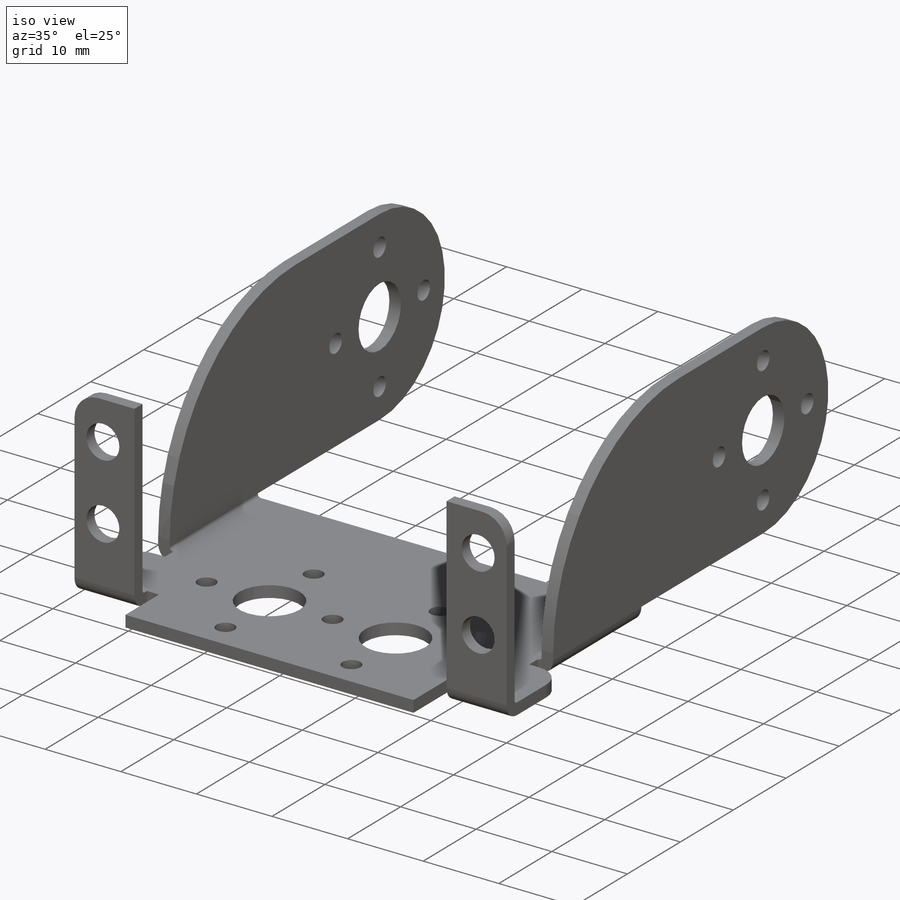
[diagram: iso view]
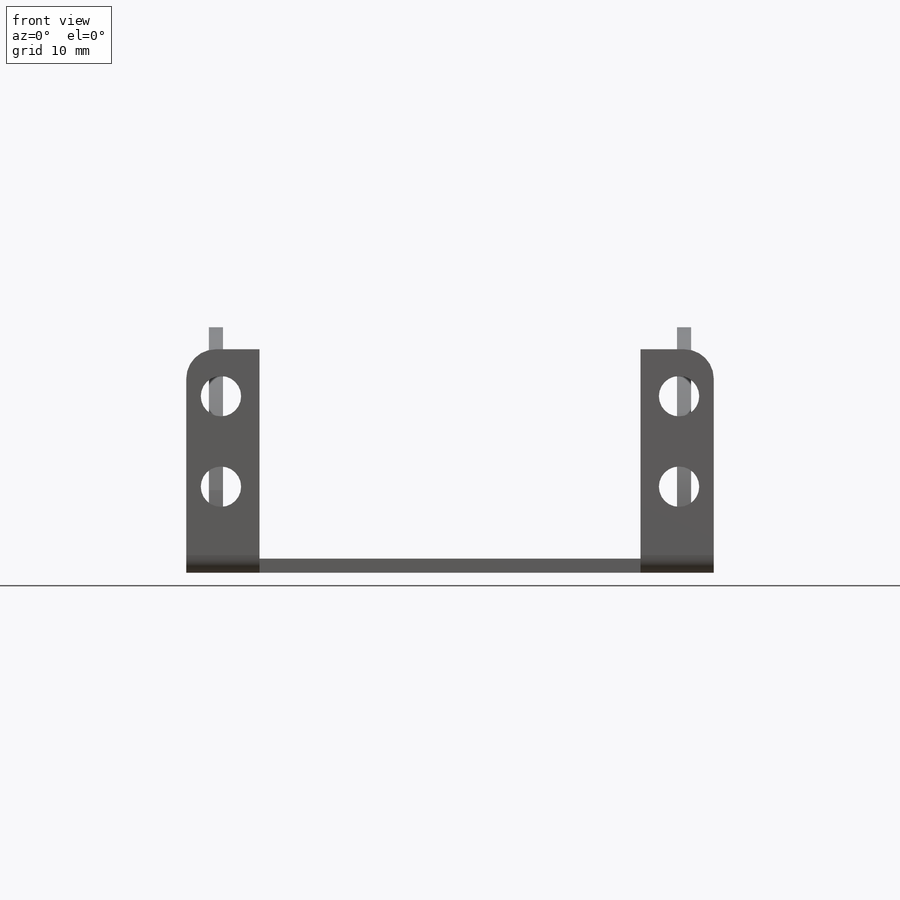
[diagram: front view]
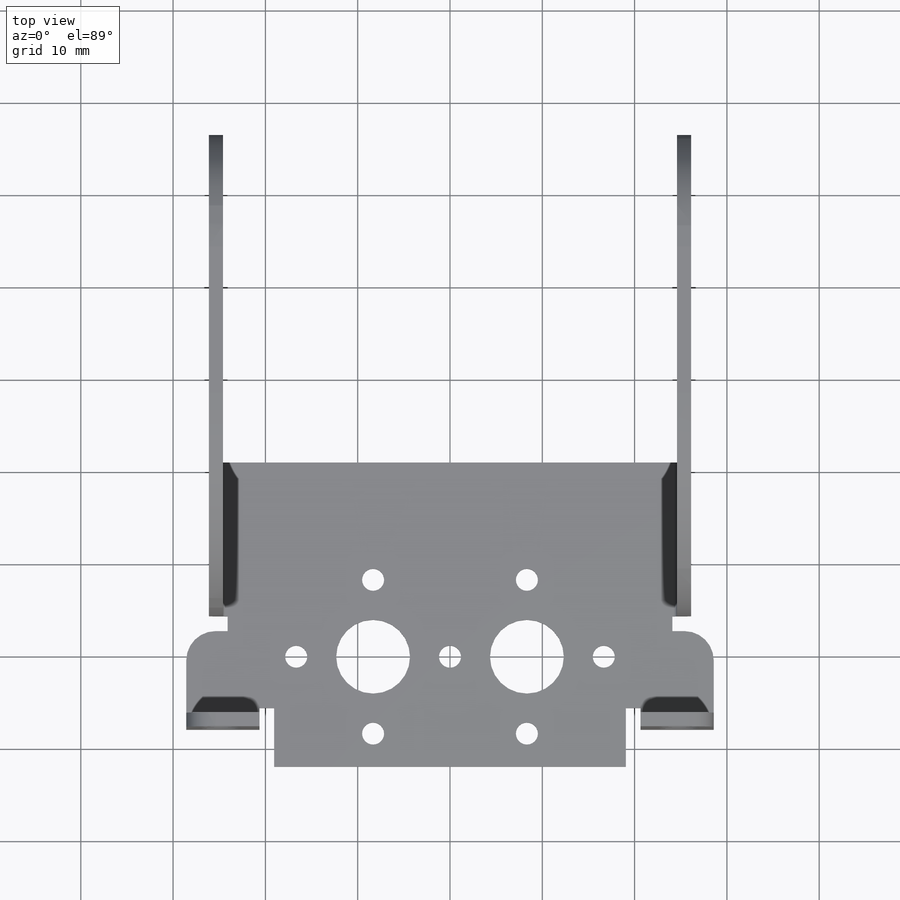
[diagram: top view]
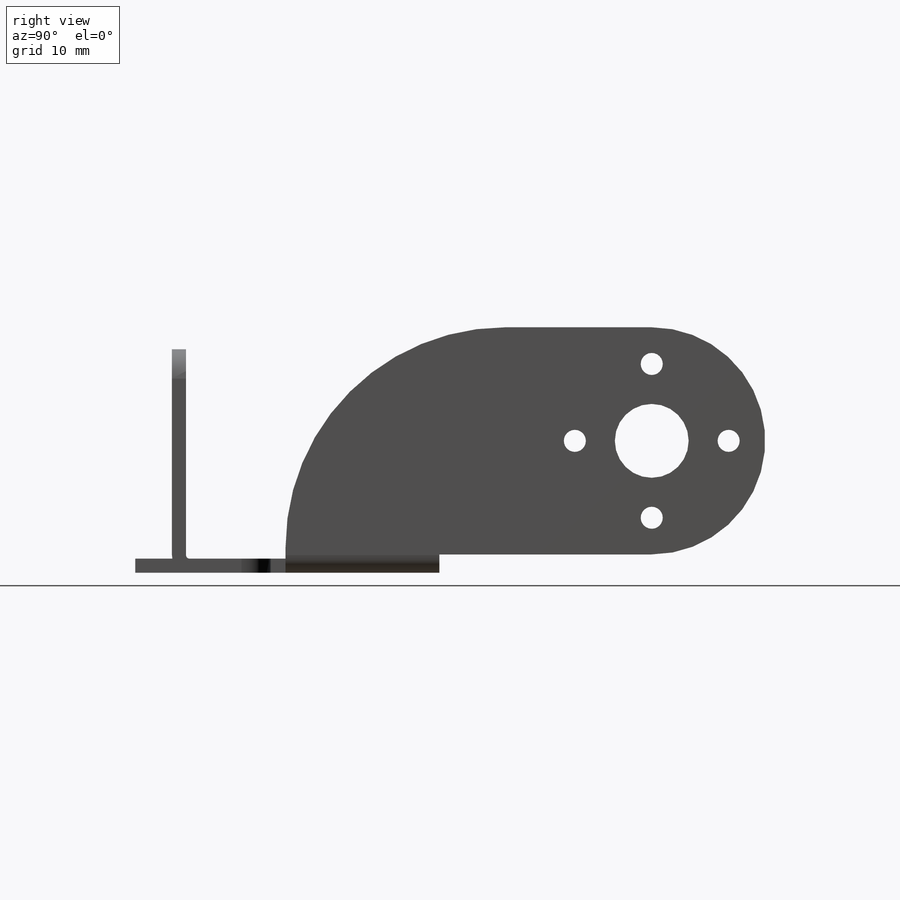
[diagram: right view]
SOLIDWORKS PART (.sldprt)
format: sldprt  version: not decoded by parser v0  size: 555,520 bytes
history: native  units: mm
features: sketch x14, sheet_metal_op x5, cut_extrude x5, fillet x4, material x1 + 4 further entries (+14 scaffold rows collapsed; 1 parser-record rows omitted)
feature tree (48):
  scaffold x14  (default folders/planes/origin — collapsed)
  material  "5052-H32"
  sketch  "Sketch1"  dims[c1.D2=~5.87312mm c2.D2=8.001mm c2.D3=2.3876mm c2.D1=16.6624mm c3.D2=8.3312mm c3.D4=57.15mm c3.D5=11.9126mm c3.D6=32.9438mm]
  sheet_metal_op  "Sheet-Metal1"  Thickness=1.524mm
  sheet_metal_op  "Base-Flange1"
  sketch  "Sketch3"  dims[D1=49.1998mm D2=18.2626mm D3=~3.96875mm D4=9.525mm]
  cut_extrude  "Extrude1"  [1 undecoded]
  sketch  "Sketch4"  dims[D1=1.5875mm D2=6.35mm]
  cut_extrude  "Extrude2"  [1 undecoded]
  sketch  "Sketch9"
  sketch  "Sketch10"  dims[c1.D1=~0.396875mm c1.D4=90.0deg c1.D5=1.0 c1.D8=0.762mm c1.D9=0.762mm c2.D1=~0.396875mm c2.D4=90.0deg c2.D5=2.0 c2.D8=0.762mm c2.D9=0.762mm c3.D1=0.508mm c3.D2=500.0mm c3.D3=0.0mm c3.D6=10.0mm c3.D7=24.2062mm c3.D8=0.508mm]
  sketch  "Sketch19"  dims[D1=16.6624mm]
  sketch  "Sketch21"  dims[c1.D1=16.6624mm c2.D1=~0.396875mm c2.D4=90.0deg c2.D5=3.0 c2.D8=0.762mm c2.D9=0.762mm c3.D1=~0.396875mm c3.D4=90.0deg c3.D5=4.0 c3.D8=0.762mm c3.D9=0.762mm c4.D1=0.508mm c4.D2=500.0mm c4.D3=0.0mm c4.D6=10.0mm c4.D7=26.5938mm c4.D8=0.508mm]
  sketch  "Sketch22"
  sheet_metal_op  "Tab1"
  sketch  "Sketch24"  dims[D1=24.6126mm D2=35.306mm]
  sheet_metal_op  "Tab3"
  sketch  "Sketch25"  dims[D1=35.306mm D2=24.6126mm]
  sheet_metal_op  "Tab4"
  sketch  "Sketch26"  dims[D3=2.3876mm D4=8.001mm D1=16.6624mm D2=55.9562mm]
  cut_extrude  "Extrude3"  [1 undecoded]
  fillet  "Fillet3"  [1 undecoded]
  fillet  "Fillet4"  [1 undecoded]
  sketch  "Sketch29"  dims[D4=4.3688mm D1=49.6316mm D2=9.3218mm D3=9.8044mm]
  cut_extrude  "Extrude4"  [1 undecoded]
  fillet  "Fillet5"  Radius=3.175mm
  sketch  "Sketch34"  dims[D1=0.508mm]
  cut_extrude  "Extrude7"  [1 undecoded]
  fillet  "Fillet6"  Radius=23.8125mm
  "Flat-Pattern1"
  sketch  "Bend-Lines1"
  "Flatten-<EdgeBend2>1"
  "Flatten-<EdgeBend5>1"
  "Flatten-<EdgeBend6>1"
  parser-record x1  (decoder bookkeeping rows leaked as tree rows — omitted from the tree; the rows remain in map.json)
decode coverage: 14 of 28 modeling features carry decoded parameters; 4 rows unclassified (native names shown)
note: ~ marks probable driven/reference dimensions
note: 7 parameter values undecoded
summary: no parameter record found for 7 features
note: suppression state not decoded; provenance and decode notes live in map.json
